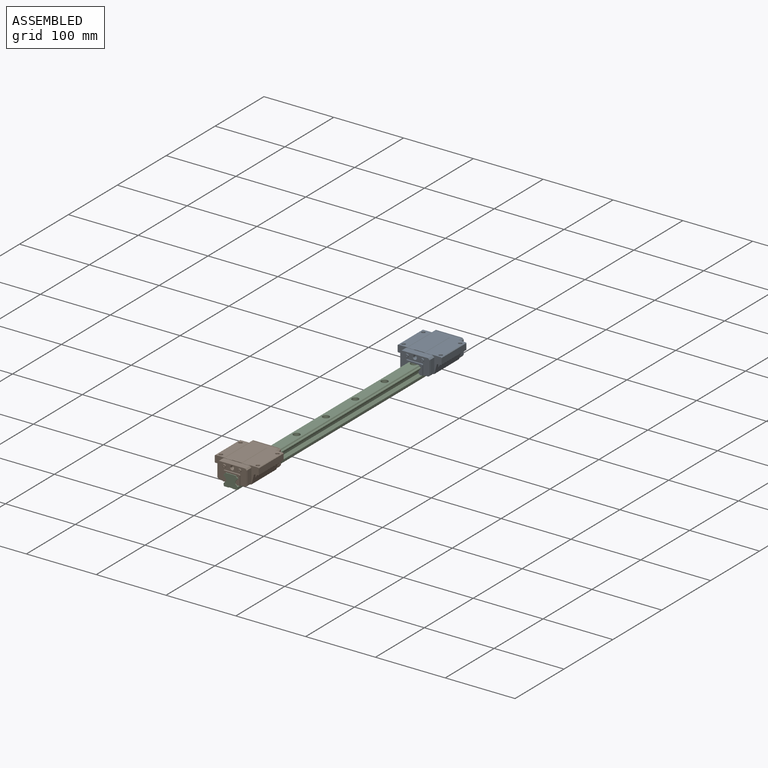
[diagram: assembled view]
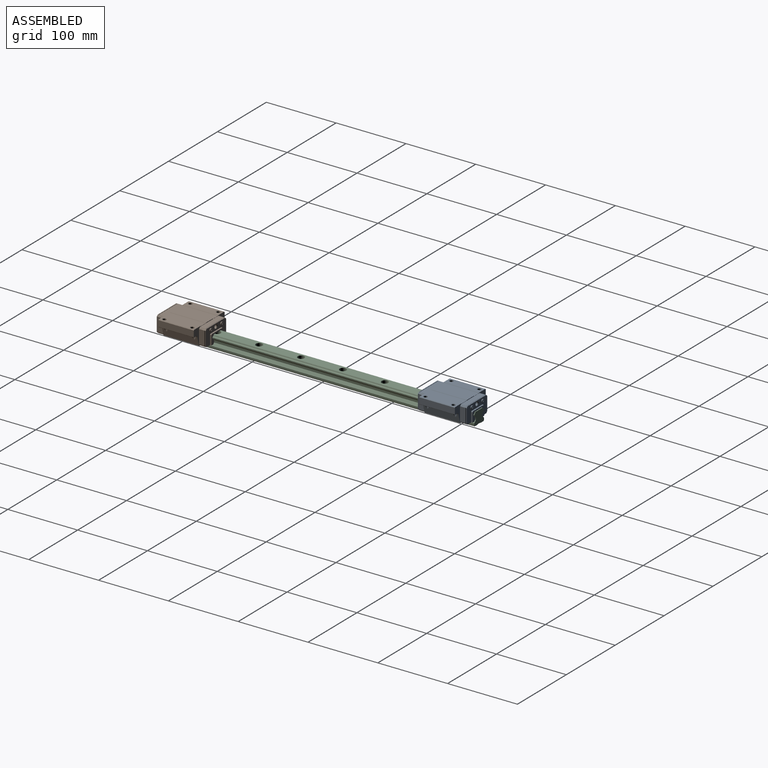
[diagram: assembled view, second angle]
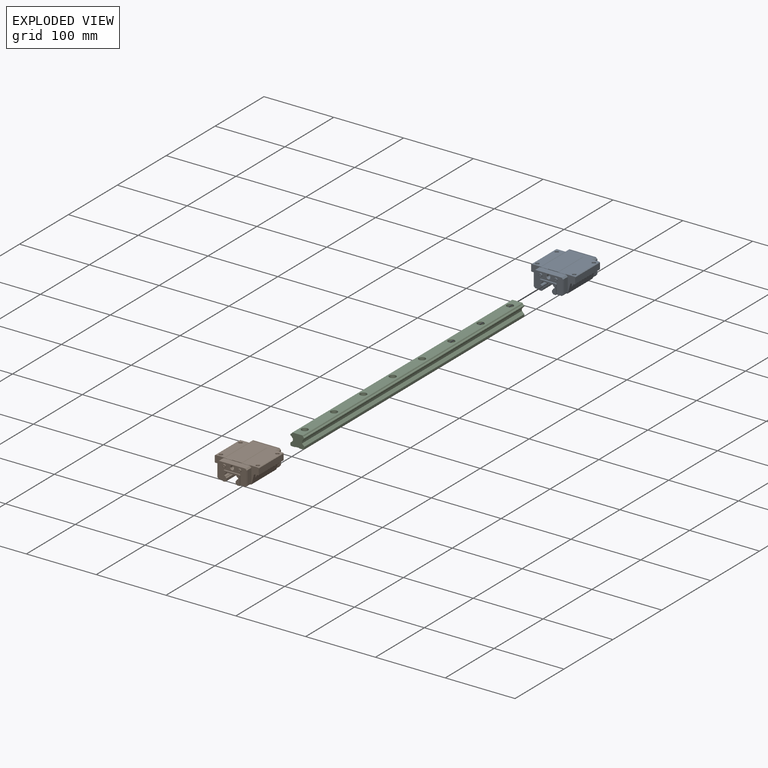
[diagram: exploded view]
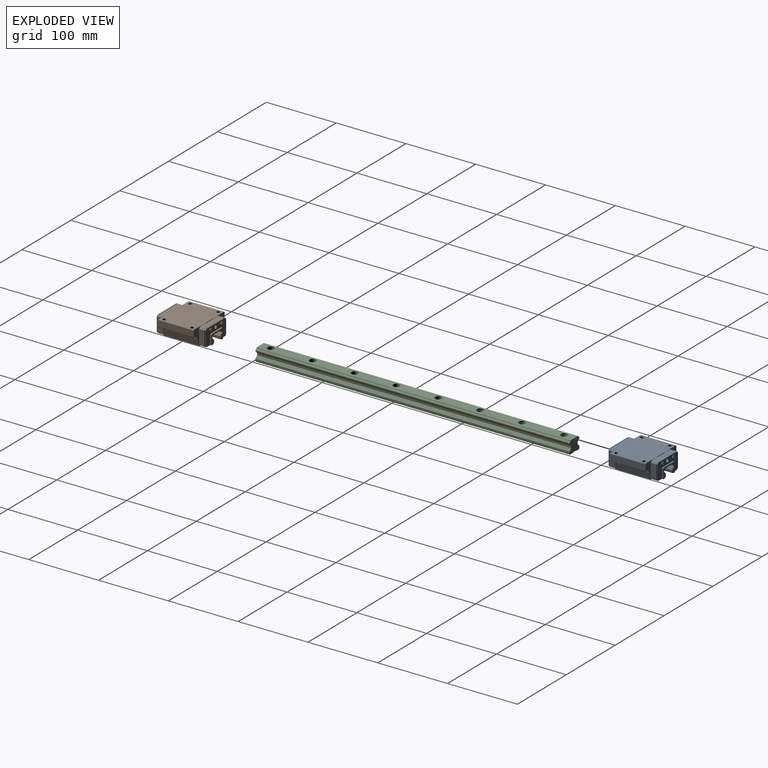
[diagram: exploded view, second angle]
ASSEMBLY  parts=3 mates=2
PART A: 190 faces, bbox 26x63x74 mm
  f0: torus R=1.37mm, axis (-1,0,0), area 5.4mm2, adj f1,f2
  f1: cylinder r=1.71mm len=3.43mm, axis (-1,0,0), area 12.7mm2, adj f0,f3
  f2: plane 2.74x2.74mm, normal (-1,0,0), area 5.9mm2, adj f0
  f3: plane 74x10.82mm, normal (-1,0,0), area 584.5mm2, adj f1,f12,f17,f21,f24,f26,f28,f29
  f4: torus R=1.37mm, axis (-1,0,0), area 5.4mm2, adj f5,f6
  f5: cylinder r=1.71mm len=3.43mm, axis (-1,0,0), area 12.7mm2, adj f4,f7
  f6: plane 2.74x2.74mm, normal (-1,0,0), area 5.9mm2, adj f4
  f7: plane 74x10.82mm, normal (-1,0,0), area 584.5mm2, adj f5,f15,f20,f23,f24,f25,f26,f27
  f8: cylinder r=2.25mm len=4.5mm, axis (0,0,1), area 13.8mm2, adj f9,f180
  f9: torus R=1.93mm, axis (0,0,1), area 6.8mm2, adj f8,f132
  f10: cylinder r=2.25mm len=4.5mm, axis (0,0,1), area 13.8mm2, adj f11,f180
  f11: torus R=1.93mm, axis (0,0,1), area 6.8mm2, adj f10,f124
  f12: plane 13.48x2mm, normal (0,-1,0), area 27mm2, adj f3,f13,f84,f176
  f13: plane 2x1mm, normal (0.71,-0.71,0), area 2.8mm2, adj f12,f14,f84,f176
  f14: plane 22x2mm, normal (1,0,0), area 44mm2, adj f13,f16,f84,f176
  f15: plane 13.48x2mm, normal (0,1,0), area 27mm2, adj f7,f16,f84,f176
  f16: plane 2x1mm, normal (0.71,0.71,0), area 2.8mm2, adj f14,f15,f84,f176
  f17: plane 13.48x2mm, normal (0,-1,0), area 27mm2, adj f3,f18,f83,f180
  f18: plane 2x1mm, normal (0.71,-0.71,0), area 2.8mm2, adj f17,f19,f83,f180
  f19: plane 22x2mm, normal (1,0,0), area 44mm2, adj f18,f22,f83,f180
  f20: plane 2x2mm, normal (-0.71,0.71,0), area 2.8mm2, adj f7,f157,f159,f161,f180
  f21: plane 2x2mm, normal (-0.71,-0.71,0), area 2.8mm2, adj f3,f170,f173,f174,f180
  f22: plane 2x1mm, normal (0.71,0.71,0), area 2.8mm2, adj f19,f23,f83,f180
  f23: plane 13.48x2mm, normal (0,1,0), area 27mm2, adj f7,f22,f83,f180
  f24: plane 63x24.68mm, normal (0,0,1), area 300mm2, adj f3,f7,f25,f29,f30,f31,f32,f33
  f25: plane 50.8x0.2mm, normal (0,-1,0), area 10.2mm2, adj f7,f24,f26,f30
  f26: plane 63x24.68mm, normal (0,0,-1), area 300mm2, adj f3,f7,f25,f29,f30,f31,f32,f34
  f27: plane 2x2mm, normal (-0.71,0.71,0), area 2.8mm2, adj f7,f150,f151,f153,f176
  f28: plane 2x2mm, normal (-0.71,-0.71,0), area 2.8mm2, adj f3,f164,f166,f168,f176
  f29: plane 50.8x0.2mm, normal (0,1,0), area 10.2mm2, adj f3,f24,f26,f54
  f30: plane 50.8x4.23mm, normal (-1,0,0), area 214.9mm2, adj f24,f25,f26,f31
  f31: cylinder r=1mm len=50.8mm, axis (0,0,-1), area 66.7mm2, adj f24,f26,f30,f32
  f32: plane 50.8x11.71mm, normal (-0.26,0.97,0), area 576.9mm2, adj f24,f26,f31,f33,f55,f57,f58,f59
  f33: cylinder r=3mm len=2.9mm, axis (0,0,-1), area 8.7mm2, adj f24,f32,f34,f57,f60
  f34: plane 50.8x8mm, normal (-1,0,0), area 185mm2, adj f24,f26,f33,f35,f55,f57,f58,f59
  f35: plane 50.8x0.5mm, normal (-0.71,0.71,0), area 35.9mm2, adj f24,f26,f34,f36
  f36: plane 50.8x8.7mm, normal (0,1,0), area 442mm2, adj f24,f26,f35,f37
  f37: plane 50.8x0.8mm, normal (0.71,0.71,0), area 57.5mm2, adj f24,f26,f36,f38
  f38: plane 50.8x12.7mm, normal (1,0,0), area 588.6mm2, adj f24,f26,f37,f39,f66,f67
  f39: plane 50.8x0.5mm, normal (0.71,-0.71,0), area 35.9mm2, adj f24,f26,f38,f40
  f40: plane 50.8x10mm, normal (1,0,0), area 508mm2, adj f24,f26,f39,f41
  f41: plane 50.8x0.5mm, normal (0.71,0.71,0), area 35.9mm2, adj f24,f26,f40,f42
  f42: plane 50.8x14mm, normal (1,0,0), area 711.2mm2, adj f24,f26,f41,f43
  f43: plane 50.8x0.5mm, normal (0.71,-0.71,0), area 35.9mm2, adj f24,f26,f42,f44
  f44: plane 50.8x10mm, normal (1,0,0), area 508mm2, adj f24,f26,f43,f45
  f45: plane 50.8x0.5mm, normal (0.71,0.71,0), area 35.9mm2, adj f24,f26,f44,f46
  f46: plane 50.8x12.7mm, normal (1,0,0), area 588.6mm2, adj f24,f26,f45,f47,f68,f69
  f47: plane 50.8x0.8mm, normal (0.71,-0.71,0), area 57.5mm2, adj f24,f26,f46,f48
  f48: plane 50.8x8.7mm, normal (0,-1,0), area 442mm2, adj f24,f26,f47,f49
  f49: plane 50.8x0.5mm, normal (-0.71,-0.71,0), area 35.9mm2, adj f24,f26,f48,f50
  f50: plane 50.8x8mm, normal (-1,0,0), area 185mm2, adj f24,f26,f49,f51,f56,f70,f71,f72
  f51: cylinder r=3mm len=2.9mm, axis (0,0,-1), area 8.7mm2, adj f24,f50,f52,f70,f71
  f52: plane 50.8x11.71mm, normal (-0.26,-0.97,0), area 576.9mm2, adj f24,f26,f51,f53,f56,f71,f73,f75
  f53: cylinder r=1mm len=50.8mm, axis (0,0,-1), area 66.7mm2, adj f24,f26,f52,f54
  f54: plane 50.8x4.23mm, normal (-1,0,0), area 214.9mm2, adj f24,f26,f29,f53
  f55: cylinder r=3mm len=2.9mm, axis (0,0,-1), area 8.7mm2, adj f26,f32,f34,f59,f61
  f56: cylinder r=3mm len=2.9mm, axis (0,0,-1), area 8.7mm2, adj f26,f50,f52,f75,f76
  f57: cylinder r=3.5mm len=7.14mm, axis (1,0,0), area 37.7mm2, adj f32,f33,f34,f58,f60,f63
  f58: cylinder r=3mm len=34.57mm, axis (0,0,-1), area 132.4mm2, adj f32,f34,f57,f59,f62,f63
  f59: cylinder r=3.5mm len=7.14mm, axis (1,0,0), area 37.7mm2, adj f32,f34,f55,f58,f61,f62
  f60: plane 0.69x0.08mm, normal (0,0,-1), area 0mm2, adj f33,f34,f57
  f61: plane 0.69x0.08mm, normal (0,0,1), area 0mm2, adj f34,f55,f59
  f62: plane 0.69x0.08mm, normal (0,0,-1), area 0mm2, adj f34,f58,f59
  f63: plane 0.69x0.08mm, normal (0,0,1), area 0mm2, adj f34,f57,f58
  f64: cone r=2.46mm half-angle=45deg, axis (-1,0,0), area 13.1mm2, adj f34,f79
  f65: cone r=2.46mm half-angle=45deg, axis (-1,0,0), area 13.1mm2, adj f34,f80
  f66: cone r=2.46mm half-angle=45deg, axis (1,0,0), area 13.1mm2, adj f38,f79
  f67: cone r=2.46mm half-angle=45deg, axis (1,0,0), area 13.1mm2, adj f38,f80
  f68: cone r=2.46mm half-angle=45deg, axis (1,0,0), area 13.1mm2, adj f46,f81
  f69: cone r=2.46mm half-angle=45deg, axis (1,0,0), area 13.1mm2, adj f46,f82
  f70: plane 0.69x0.08mm, normal (0,0,-1), area 0mm2, adj f50,f51,f71
  f71: cylinder r=3.5mm len=7.14mm, axis (1,0,0), area 37.7mm2, adj f50,f51,f52,f70,f72,f73
  f72: plane 0.69x0.08mm, normal (0,0,1), area 0mm2, adj f50,f71,f73
  f73: cylinder r=3mm len=34.57mm, axis (0,0,-1), area 132.4mm2, adj f50,f52,f71,f72,f74,f75
  f74: plane 0.69x0.08mm, normal (0,0,-1), area 0mm2, adj f50,f73,f75
  f75: cylinder r=3.5mm len=7.14mm, axis (1,0,0), area 37.7mm2, adj f50,f52,f56,f73,f74,f76
  f76: plane 0.69x0.08mm, normal (0,0,1), area 0mm2, adj f50,f56,f75
  f77: cone r=2.46mm half-angle=45deg, axis (-1,0,0), area 13.1mm2, adj f50,f82
  f78: cone r=2.46mm half-angle=45deg, axis (-1,0,0), area 13.1mm2, adj f50,f81
  f79: cylinder r=2.46mm len=8.92mm, axis (-1,0,0), area 137.7mm2, adj f64,f66
  f80: cylinder r=2.46mm len=8.92mm, axis (-1,0,0), area 137.7mm2, adj f65,f67
  f81: cylinder r=2.46mm len=8.92mm, axis (-1,0,0), area 137.7mm2, adj f68,f78
  f82: cylinder r=2.46mm len=8.92mm, axis (-1,0,0), area 137.7mm2, adj f69,f77
  f83: plane 24x14.48mm, normal (0,0,1), area 149.3mm2, adj f3,f7,f17,f18,f19,f22,f23,f85
  f84: plane 24x14.48mm, normal (0,0,-1), area 149.3mm2, adj f3,f7,f12,f13,f14,f15,f16,f85
  f85: plane 74x2.93mm, normal (0,-1,0), area 216.8mm2, adj f83,f84,f86,f87
  f86: plane 74x1.93mm, normal (-0.71,-0.71,0), area 202.3mm2, adj f7,f83,f84,f85
  f87: plane 74x1.22mm, normal (0.71,-0.71,0), area 127.2mm2, adj f83,f84,f85,f88
  f88: cylinder r=2.06mm len=74mm, axis (0,0,-1), area 192.5mm2, adj f83,f84,f87,f89
  f89: plane 74x0.52mm, normal (0.71,-0.71,0), area 53.9mm2, adj f83,f84,f88,f90
  f90: plane 74x1.33mm, normal (0,-1,0), area 98.5mm2, adj f83,f84,f89,f91
  f91: plane 74x0.53mm, normal (-0.71,-0.71,0), area 55.2mm2, adj f83,f84,f90,f92
  f92: cylinder r=2.06mm len=74mm, axis (0,0,-1), area 190.6mm2, adj f83,f84,f91,f93
  f93: plane 74x0.61mm, normal (-0.71,-0.71,0), area 63.6mm2, adj f83,f84,f92,f94
  f94: plane 74x14.32mm, normal (-1,0,0), area 1059.7mm2, adj f83,f84,f93,f95
  f95: plane 74x0.61mm, normal (-0.71,0.71,0), area 63.6mm2, adj f83,f84,f94,f96
  f96: cylinder r=2.06mm len=74mm, axis (0,0,-1), area 190.6mm2, adj f83,f84,f95,f97
  f97: plane 74x0.53mm, normal (-0.71,0.71,0), area 55.2mm2, adj f83,f84,f96,f98
  f98: plane 74x1.33mm, normal (0,1,0), area 98.5mm2, adj f83,f84,f97,f99
  f99: plane 74x0.52mm, normal (0.71,0.71,0), area 53.9mm2, adj f83,f84,f98,f100
  f100: cylinder r=2.06mm len=74mm, axis (0,0,-1), area 192.5mm2, adj f83,f84,f99,f101
  f101: plane 74x1.22mm, normal (0.71,0.71,0), area 127.2mm2, adj f83,f84,f100,f102
  f102: plane 74x2.93mm, normal (0,1,0), area 216.8mm2, adj f83,f84,f101,f103
  f103: plane 74x1.93mm, normal (-0.71,0.71,0), area 202.3mm2, adj f3,f83,f84,f102
  f104: cylinder r=2.25mm len=4.5mm, axis (0,0,1), area 13.8mm2, adj f105,f176
  f105: torus R=1.93mm, axis (0,0,1), area 6.8mm2, adj f104,f108
  f106: cylinder r=2.25mm len=4.5mm, axis (0,0,1), area 13.8mm2, adj f107,f176
  f107: torus R=1.93mm, axis (0,0,1), area 6.8mm2, adj f106,f116
  f108: plane 3.85x3.85mm, normal (0,0,-1), area 8.2mm2, adj f105,f109,f110,f111,f113,f114,f115
  f109: plane 1.15x0.65mm, normal (0,1,0), area 0.8mm2, adj f108,f110,f111,f112
  f110: plane 1x0.65mm, normal (-0.87,0.5,0), area 0.8mm2, adj f108,f109,f112,f113
  f111: plane 1x0.65mm, normal (0.87,0.5,0), area 0.8mm2, adj f108,f109,f112,f114
  f112: plane 2.31x2mm, normal (0,0,-1), area 3.5mm2, adj f109,f110,f111,f113,f114,f115
  f113: plane 1x0.65mm, normal (-0.87,-0.5,0), area 0.8mm2, adj f108,f110,f112,f115
  f114: plane 1x0.65mm, normal (0.87,-0.5,0), area 0.8mm2, adj f108,f111,f112,f115
  f115: plane 1.15x0.65mm, normal (0,-1,0), area 0.8mm2, adj f108,f112,f113,f114
  f116: plane 3.85x3.85mm, normal (0,0,-1), area 8.2mm2, adj f107,f117,f118,f119,f121,f122,f123
  f117: plane 1.15x0.65mm, normal (0,1,0), area 0.8mm2, adj f116,f118,f119,f120
  f118: plane 1x0.65mm, normal (-0.87,0.5,0), area 0.8mm2, adj f116,f117,f120,f121
  f119: plane 1x0.65mm, normal (0.87,0.5,0), area 0.8mm2, adj f116,f117,f120,f122
  f120: plane 2.31x2mm, normal (0,0,-1), area 3.5mm2, adj f117,f118,f119,f121,f122,f123
  f121: plane 1x0.65mm, normal (-0.87,-0.5,0), area 0.8mm2, adj f116,f118,f120,f123
  f122: plane 1x0.65mm, normal (0.87,-0.5,0), area 0.8mm2, adj f116,f119,f120,f123
  f123: plane 1.15x0.65mm, normal (0,-1,0), area 0.8mm2, adj f116,f120,f121,f122
  f124: plane 3.85x3.85mm, normal (0,0,1), area 8.2mm2, adj f11,f125,f126,f127,f129,f130,f131
  f125: plane 1.15x0.65mm, normal (0,1,0), area 0.8mm2, adj f124,f126,f127,f128
  f126: plane 1x0.65mm, normal (-0.87,0.5,0), area 0.8mm2, adj f124,f125,f128,f129
  f127: plane 1x0.65mm, normal (0.87,0.5,0), area 0.8mm2, adj f124,f125,f128,f130
  f128: plane 2.31x2mm, normal (0,0,1), area 3.5mm2, adj f125,f126,f127,f129,f130,f131
  f129: plane 1x0.65mm, normal (-0.87,-0.5,0), area 0.8mm2, adj f124,f126,f128,f131
  f130: plane 1x0.65mm, normal (0.87,-0.5,0), area 0.8mm2, adj f124,f127,f128,f131
  f131: plane 1.15x0.65mm, normal (0,-1,0), area 0.8mm2, adj f124,f128,f129,f130
  f132: plane 3.85x3.85mm, normal (0,0,1), area 8.2mm2, adj f9,f133,f134,f135,f137,f138,f139
  f133: plane 1.15x0.65mm, normal (0,1,0), area 0.8mm2, adj f132,f134,f135,f136
  f134: plane 1x0.65mm, normal (-0.87,0.5,0), area 0.8mm2, adj f132,f133,f136,f137
  f135: plane 1x0.65mm, normal (0.87,0.5,0), area 0.8mm2, adj f132,f133,f136,f138
  f136: plane 2.31x2mm, normal (0,0,1), area 3.5mm2, adj f133,f134,f135,f137,f138,f139
  f137: plane 1x0.65mm, normal (-0.87,-0.5,0), area 0.8mm2, adj f132,f134,f136,f139
  f138: plane 1x0.65mm, normal (0.87,-0.5,0), area 0.8mm2, adj f132,f135,f136,f139
  f139: plane 1.15x0.65mm, normal (0,-1,0), area 0.8mm2, adj f132,f136,f137,f138
  f140: plane 38x8.1mm, normal (1,0,0), area 307.8mm2, adj f24,f142,f155,f169
  f141: plane 38x1mm, normal (1,0,0), area 38mm2, adj f143,f155,f169,f180
  f142: plane 39x0.5mm, normal (0.71,0,0.71), area 27.2mm2, adj f140,f143,f155,f169
  f143: plane 39x0.5mm, normal (0,0,-1), area 19.3mm2, adj f141,f142,f155,f169
  f144: plane 38x8.1mm, normal (1,0,0), area 307.8mm2, adj f26,f147,f148,f162
  f145: plane 38x1mm, normal (1,0,0), area 38mm2, adj f146,f148,f162,f176
  f146: plane 39x0.5mm, normal (0,0,1), area 19.3mm2, adj f145,f147,f148,f162
  f147: plane 39x0.5mm, normal (0.71,0,-0.71), area 27.2mm2, adj f144,f146,f148,f162
  f148: plane 9.6x2mm, normal (0.71,0.71,0), area 26.8mm2, adj f26,f144,f145,f146,f147,f149,f150,f153
  f149: plane 19.98x8.1mm, normal (0,1,0), area 161.9mm2, adj f26,f148,f152,f154
  f150: plane 19.68x1mm, normal (0,1,0), area 19.7mm2, adj f27,f148,f153,f176
  f151: plane 1.5x1.5mm, normal (0,0,-1), area 0.4mm2, adj f7,f27,f152,f154
  f152: plane 8.6x1.7mm, normal (-0.71,0.71,0), area 20.5mm2, adj f7,f26,f149,f151,f154
  f153: plane 20.68x0.5mm, normal (0,0,1), area 10.1mm2, adj f27,f148,f150,f154
  f154: plane 20.98x0.5mm, normal (0,0.71,-0.71), area 14.5mm2, adj f148,f149,f151,f152,f153
  f155: plane 9.6x2mm, normal (0.71,0.71,0), area 26.8mm2, adj f24,f140,f141,f142,f143,f158,f159,f160
  f156: plane 8.6x1.7mm, normal (-0.71,0.71,0), area 20.5mm2, adj f7,f24,f157,f158,f160
  f157: plane 1.5x1.5mm, normal (0,0,1), area 0.4mm2, adj f7,f20,f156,f160
  f158: plane 19.98x8.1mm, normal (0,1,0), area 161.9mm2, adj f24,f155,f156,f160
  f159: plane 19.68x1mm, normal (0,1,0), area 19.7mm2, adj f20,f155,f161,f180
  f160: plane 20.98x0.5mm, normal (0,0.71,0.71), area 14.5mm2, adj f155,f156,f157,f158,f161
  f161: plane 20.68x0.5mm, normal (0,0,-1), area 10.1mm2, adj f20,f155,f159,f160
  f162: plane 9.6x2mm, normal (0.71,-0.71,0), area 26.8mm2, adj f26,f144,f145,f146,f147,f163,f164,f167
  f163: plane 19.98x8.1mm, normal (0,-1,0), area 161.9mm2, adj f26,f162,f165,f167
  f164: plane 19.68x1mm, normal (0,-1,0), area 19.7mm2, adj f28,f162,f168,f176
  f165: plane 8.6x1.7mm, normal (-0.71,-0.71,0), area 20.5mm2, adj f3,f26,f163,f166,f167
  f166: plane 1.5x1.5mm, normal (0,0,-1), area 0.4mm2, adj f3,f28,f165,f167
  f167: plane 20.98x0.5mm, normal (0,-0.71,-0.71), area 14.5mm2, adj f162,f163,f165,f166,f168
  f168: plane 20.68x0.5mm, normal (0,0,1), area 10.1mm2, adj f28,f162,f164,f167
  f169: plane 9.6x2mm, normal (0.71,-0.71,0), area 26.8mm2, adj f24,f140,f141,f142,f143,f172,f173,f174
  f170: plane 1.5x1.5mm, normal (0,0,1), area 0.4mm2, adj f3,f21,f171,f175
  f171: plane 8.6x1.7mm, normal (-0.71,-0.71,0), area 20.5mm2, adj f3,f24,f170,f172,f175
  f172: plane 19.98x8.1mm, normal (0,-1,0), area 161.9mm2, adj f24,f169,f171,f175
  f173: plane 19.68x1mm, normal (0,-1,0), area 19.7mm2, adj f21,f169,f174,f180
  f174: plane 20.68x0.5mm, normal (0,0,-1), area 10.1mm2, adj f21,f169,f173,f175
  f175: plane 20.98x0.5mm, normal (0,-0.71,0.71), area 14.5mm2, adj f169,f170,f171,f172,f174
  f176: plane 42x23.68mm, normal (0,0,-1), area 580mm2, adj f3,f7,f12,f13,f14,f15,f16,f27
  f177: cone r=2.46mm half-angle=45deg, axis (0,0,-1), area 13.1mm2, adj f176,f178
  f178: cylinder r=2.46mm len=5.46mm, axis (0,0,1), area 84.3mm2, adj f177,f179
  f179: cone r=1.73mm half-angle=60deg, axis (0,0,-1), area 21.9mm2, adj f178
  f180: plane 42x23.68mm, normal (0,0,1), area 580mm2, adj f3,f7,f8,f10,f17,f18,f19,f20
  f181: cone r=1.73mm half-angle=60deg, axis (0,0,1), area 21.9mm2, adj f182
  f182: cylinder r=2.46mm len=5.46mm, axis (0,0,1), area 84.3mm2, adj f181,f183
  f183: cone r=2.46mm half-angle=45deg, axis (0,0,1), area 13.1mm2, adj f180,f182
  f184: cylinder r=1.71mm len=3.43mm, axis (-1,0,0), area 12.7mm2, adj f7,f186
  f185: plane 2.74x2.74mm, normal (-1,0,0), area 5.9mm2, adj f186
  f186: torus R=1.37mm, axis (-1,0,0), area 5.4mm2, adj f184,f185
  f187: cylinder r=1.71mm len=3.43mm, axis (-1,0,0), area 12.7mm2, adj f3,f189
  f188: plane 2.74x2.74mm, normal (-1,0,0), area 5.9mm2, adj f189
  f189: torus R=1.37mm, axis (-1,0,0), area 5.4mm2, adj f187,f188
PART B: same geometry as A
PART C: 78 faces, bbox 18.2x20.2x450.2 mm
  f0: cylinder r=4.75mm len=9.5mm, axis (-1,0,0), area 253.7mm2, adj f1,f76
  f1: plane 9.5x9.5mm, normal (1,0,0), area 42.6mm2, adj f0,f10
  f2: plane 20x18mm, normal (0,0,-1), area 301.6mm2, adj f11,f12,f13,f52,f53,f54,f55,f56
  f3: cylinder r=4.75mm len=9.5mm, axis (-1,0,0), area 253.7mm2, adj f14,f76
  f4: cylinder r=4.75mm len=9.5mm, axis (-1,0,0), area 253.7mm2, adj f15,f76
  f5: cylinder r=4.75mm len=9.5mm, axis (-1,0,0), area 253.7mm2, adj f16,f76
  f6: cylinder r=4.75mm len=9.5mm, axis (-1,0,0), area 253.7mm2, adj f17,f76
  f7: cylinder r=4.75mm len=9.5mm, axis (-1,0,0), area 253.7mm2, adj f18,f76
  f8: cylinder r=4.75mm len=9.5mm, axis (-1,0,0), area 253.7mm2, adj f19,f76
  f9: cylinder r=4.75mm len=9.5mm, axis (-1,0,0), area 253.7mm2, adj f20,f76
  f10: cylinder r=3mm len=9.5mm, axis (-1,0,0), area 171.4mm2, adj f1,f11,f12,f13,f21,f22,f23
  f11: plane 15.24x0.74mm, normal (-0.71,0.71,0), area 9.8mm2, adj f2,f10,f12,f69
  f12: plane 13.34x5mm, normal (-1,0,0), area 62mm2, adj f2,f10,f11,f13
  f13: plane 15.24x0.74mm, normal (-0.71,-0.71,0), area 9.8mm2, adj f2,f10,f12,f70
  f14: plane 9.5x9.5mm, normal (1,0,0), area 42.6mm2, adj f3,f36
  f15: plane 9.5x9.5mm, normal (1,0,0), area 42.6mm2, adj f4,f37
  f16: plane 9.5x9.5mm, normal (1,0,0), area 42.6mm2, adj f5,f38
  f17: plane 9.5x9.5mm, normal (1,0,0), area 42.6mm2, adj f6,f39
  f18: plane 9.5x9.5mm, normal (1,0,0), area 42.6mm2, adj f7,f40
  f19: plane 9.5x9.5mm, normal (1,0,0), area 42.6mm2, adj f8,f41
  f20: plane 9.5x9.5mm, normal (1,0,0), area 42.6mm2, adj f9,f42
  f21: plane 60.24x0.74mm, normal (-0.71,0.71,0), area 40.8mm2, adj f10,f22,f36,f69
  f22: plane 56.68x5mm, normal (-1,0,0), area 274mm2, adj f10,f21,f23,f36
  f23: plane 60.24x0.74mm, normal (-0.71,-0.71,0), area 40.8mm2, adj f10,f22,f36,f70
  f24: plane 60.24x0.74mm, normal (-0.71,-0.71,0), area 40.8mm2, adj f36,f37,f43,f70
  f25: plane 60.24x0.74mm, normal (-0.71,-0.71,0), area 40.8mm2, adj f37,f38,f44,f70
  f26: plane 60.24x0.74mm, normal (-0.71,-0.71,0), area 40.8mm2, adj f38,f39,f45,f70
  f27: plane 60.24x0.74mm, normal (-0.71,-0.71,0), area 40.8mm2, adj f39,f40,f46,f70
  f28: plane 60.24x0.74mm, normal (-0.71,-0.71,0), area 40.8mm2, adj f40,f41,f47,f70
  f29: plane 60.24x0.74mm, normal (-0.71,-0.71,0), area 40.8mm2, adj f41,f42,f48,f70
  f30: plane 60.24x0.74mm, normal (-0.71,0.71,0), area 40.8mm2, adj f41,f42,f48,f69
  f31: plane 60.24x0.74mm, normal (-0.71,0.71,0), area 40.8mm2, adj f40,f41,f47,f69
  f32: plane 60.24x0.74mm, normal (-0.71,0.71,0), area 40.8mm2, adj f39,f40,f46,f69
  f33: plane 60.24x0.74mm, normal (-0.71,0.71,0), area 40.8mm2, adj f38,f39,f45,f69
  f34: plane 60.24x0.74mm, normal (-0.71,0.71,0), area 40.8mm2, adj f37,f38,f44,f69
  f35: plane 60.24x0.74mm, normal (-0.71,0.71,0), area 40.8mm2, adj f36,f37,f43,f69
  f36: cylinder r=3mm len=9.5mm, axis (-1,0,0), area 171.4mm2, adj f14,f21,f22,f23,f24,f35,f43
  f37: cylinder r=3mm len=9.5mm, axis (-1,0,0), area 171.4mm2, adj f15,f24,f25,f34,f35,f43,f44
  f38: cylinder r=3mm len=9.5mm, axis (-1,0,0), area 171.4mm2, adj f16,f25,f26,f33,f34,f44,f45
  f39: cylinder r=3mm len=9.5mm, axis (-1,0,0), area 171.4mm2, adj f17,f26,f27,f32,f33,f45,f46
  f40: cylinder r=3mm len=9.5mm, axis (-1,0,0), area 171.4mm2, adj f18,f27,f28,f31,f32,f46,f47
  f41: cylinder r=3mm len=9.5mm, axis (-1,0,0), area 171.4mm2, adj f19,f28,f29,f30,f31,f47,f48
  f42: cylinder r=3mm len=9.5mm, axis (-1,0,0), area 171.4mm2, adj f20,f29,f30,f48,f49,f50,f51
  f43: plane 56.68x5mm, normal (-1,0,0), area 274mm2, adj f24,f35,f36,f37
  f44: plane 56.68x5mm, normal (-1,0,0), area 274mm2, adj f25,f34,f37,f38
  f45: plane 56.68x5mm, normal (-1,0,0), area 274mm2, adj f26,f33,f38,f39
  f46: plane 56.68x5mm, normal (-1,0,0), area 274mm2, adj f27,f32,f39,f40
  f47: plane 56.68x5mm, normal (-1,0,0), area 274mm2, adj f28,f31,f40,f41
  f48: plane 56.68x5mm, normal (-1,0,0), area 274mm2, adj f29,f30,f41,f42
  f49: plane 13.34x5mm, normal (-1,0,0), area 62mm2, adj f42,f50,f51,f77
  f50: plane 15.24x0.74mm, normal (-0.71,0.71,0), area 9.8mm2, adj f42,f49,f69,f77
  f51: plane 15.24x0.74mm, normal (-0.71,-0.71,0), area 9.8mm2, adj f42,f49,f70,f77
  f52: plane 450x2.93mm, normal (0,1,0), area 1318.2mm2, adj f2,f53,f73,f77
  f53: plane 450x1.22mm, normal (-0.71,0.71,0), area 773.8mm2, adj f2,f52,f54,f77
  f54: cylinder r=2.06mm len=450mm, axis (0,0,-1), area 1170.3mm2, adj f2,f53,f55,f77
  f55: plane 450x0.52mm, normal (-0.71,0.71,0), area 327.6mm2, adj f2,f54,f56,f77
  f56: plane 450x1.33mm, normal (0,1,0), area 598.9mm2, adj f2,f55,f57,f77
  f57: plane 450x0.53mm, normal (0.71,0.71,0), area 335.6mm2, adj f2,f56,f58,f77
  f58: cylinder r=2.06mm len=450mm, axis (0,0,-1), area 1158.9mm2, adj f2,f57,f74,f77
  f59: cylinder r=2.06mm len=450mm, axis (0,0,-1), area 1158.9mm2, adj f2,f60,f75,f77
  f60: plane 450x0.53mm, normal (0.71,-0.71,0), area 335.6mm2, adj f2,f59,f61,f77
  f61: plane 450x1.33mm, normal (0,-1,0), area 598.9mm2, adj f2,f60,f62,f77
  f62: plane 450x0.52mm, normal (-0.71,-0.71,0), area 327.6mm2, adj f2,f61,f63,f77
  f63: cylinder r=2.06mm len=450mm, axis (0,0,-1), area 1170.3mm2, adj f2,f62,f64,f77
  f64: plane 450x1.22mm, normal (-0.71,-0.71,0), area 773.8mm2, adj f2,f63,f65,f77
  f65: plane 450x2.93mm, normal (0,-1,0), area 1318.2mm2, adj f2,f64,f66,f77
  f66: plane 450x3.45mm, normal (0.71,-0.71,0), area 2195.5mm2, adj f2,f65,f67,f77
  f67: plane 450x3mm, normal (0,-1,0), area 1350mm2, adj f2,f66,f68,f77
  f68: plane 450x1mm, normal (-0.71,-0.71,0), area 636.4mm2, adj f2,f67,f69,f77
  f69: plane 450x6mm, normal (-1,0,0), area 2700mm2, adj f2,f11,f21,f30,f31,f32,f33,f34
  f70: plane 450x6mm, normal (-1,0,0), area 2700mm2, adj f2,f13,f23,f24,f25,f26,f27,f28
  f71: plane 450x1mm, normal (-0.71,0.71,0), area 636.4mm2, adj f2,f70,f72,f77
  f72: plane 450x3mm, normal (0,1,0), area 1350mm2, adj f2,f71,f73,f77
  f73: plane 450x3.45mm, normal (0.71,0.71,0), area 2195.5mm2, adj f2,f52,f72,f77
  f74: plane 450x0.61mm, normal (0.71,0.71,0), area 386.9mm2, adj f2,f58,f76,f77
  f75: plane 450x0.61mm, normal (0.71,-0.71,0), area 386.9mm2, adj f2,f59,f76,f77
  f76: plane 450x14.32mm, normal (1,0,0), area 5877mm2, adj f0,f2,f3,f4,f5,f6,f7,f8
  f77: plane 20x18mm, normal (0,0,1), area 301.6mm2, adj f49,f50,f51,f52,f53,f54,f55,f56
PLACE A rot(axis=(-0.58,-0.58,-0.58),120deg) t=(-2.33,15.18,-72.66)mm
PLACE B rot(axis=(0.58,-0.58,0.58),120deg) t=(2.33,-15.18,-72.66)mm
PLACE C rot(axis=(-0.58,-0.58,-0.58),120deg) t=(-2.33,-137.84,-72.66)mm
MATE slider A.f84 <-> C.f77  axis (0,-1,0) through (0,150,17.5)mm
MATE slider B.f84 <-> C.f2  axis (0,1,0) through (0,-150,17.5)mm
